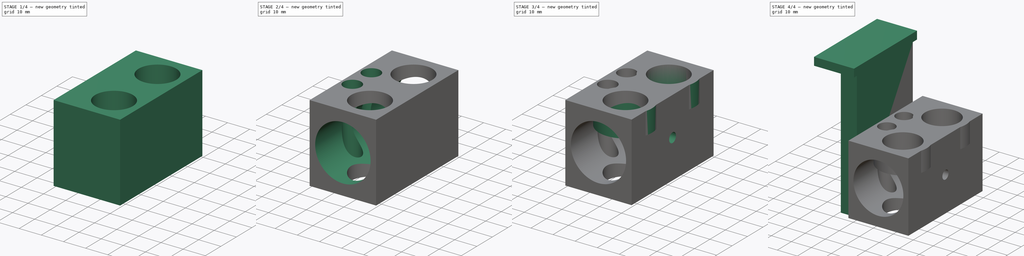
[diagram: build sequence overview — one tinted view per stage of 4, left to right]
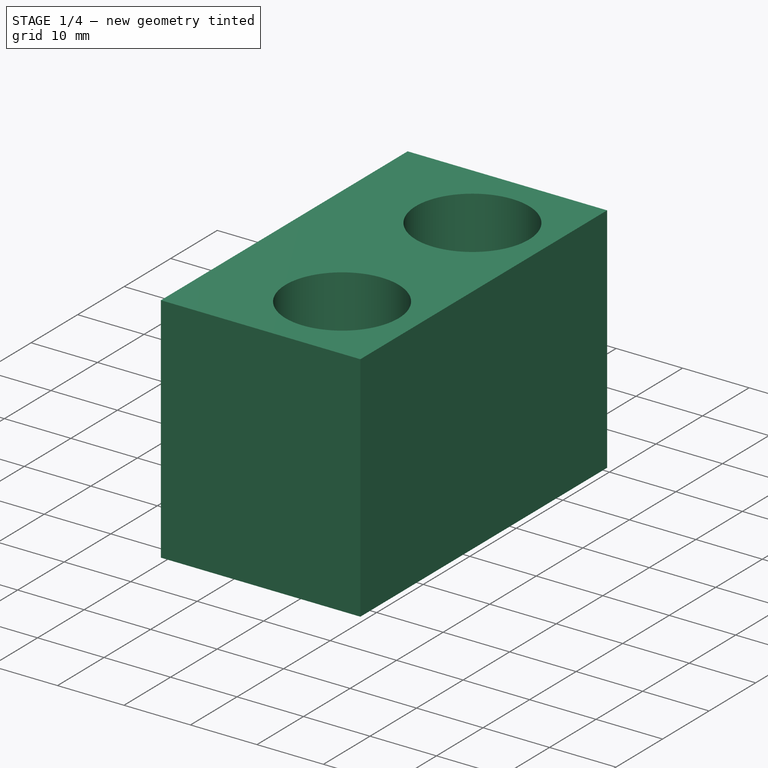
[diagram: stage 1 of 4 — iso view after this stage's code; geometry added in this stage tinted green]
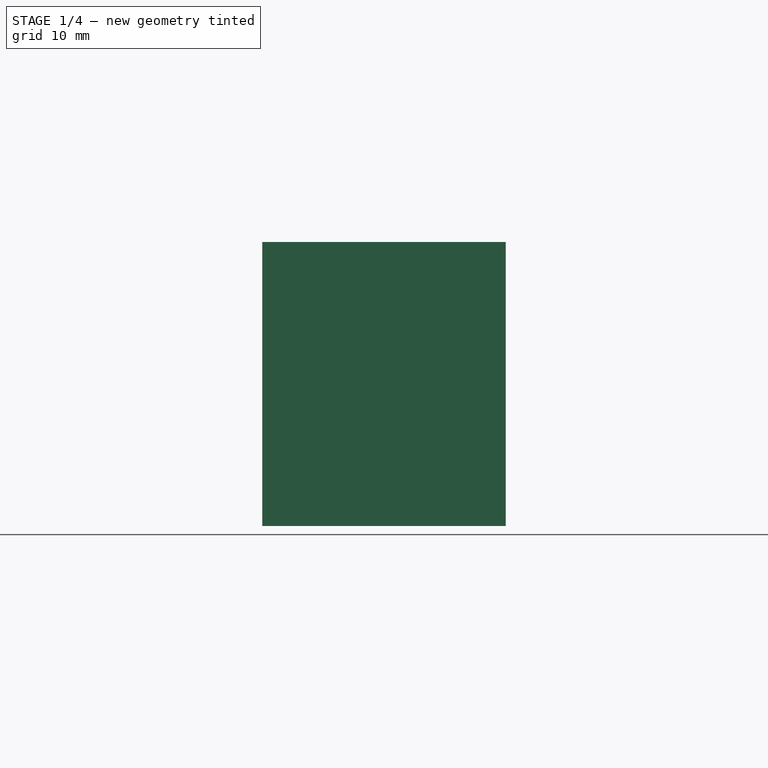
[diagram: stage 1 of 4 — front view after this stage's code; geometry added in this stage tinted green]
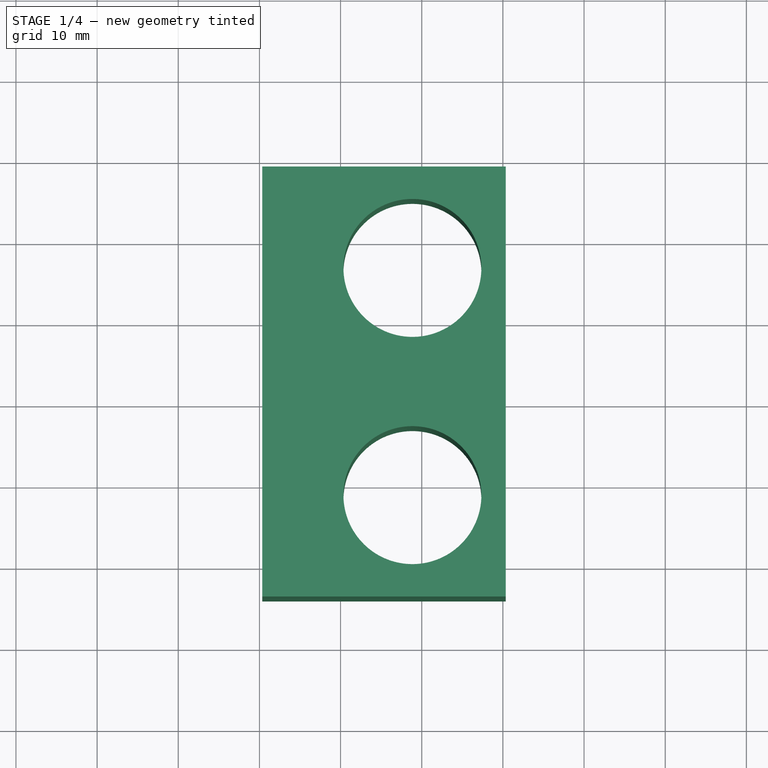
[diagram: stage 1 of 4 — top view after this stage's code; geometry added in this stage tinted green]
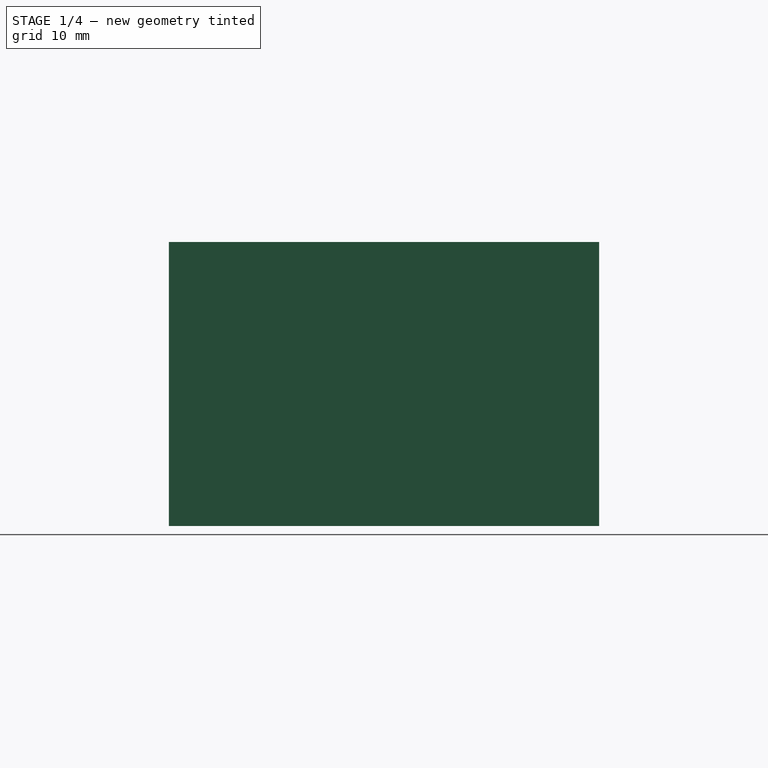
[diagram: stage 1 of 4 — right view after this stage's code; geometry added in this stage tinted green]
FCSTD DOCUMENT  (FreeCAD 0.15R4102 (Git))
Label: doble-extrusor
License: CC-BY 3.0
LicenseURL: http://creativecommons.org/licenses/by/3.0/
objects: Part::Feature×25, Sketcher::SketchObject×6, PartDesign::Pocket×4, Part::Box×3, App::DocumentObjectGroup×2, PartDesign::Pad×2
note: 46 computed .brp shape members not serialized (recipe doc carries the construction recipe); baked Part::Feature solids carry a one-line shape summary decoded from their .brp

FEATURE [Part::Box] Box001  label="Cube001"
  Height = 35
  Length = 30
  Placement = pos=(-189.65,336,94) rot=(0,0,1;0rad)
  Width = 53
FEATURE [Sketcher::SketchObject] Sketch
  ExternalGeometry = -> [Box001]
  Placement = pos=(-189.65,336,129) rot=(0,0,1;0rad)
  Support = -> Box001 [Face6]
  sketch-geometry (6):
    g0: Circle CenterX=18.5 CenterY=40.5 CenterZ=0 NormalX=0 NormalY=0 NormalZ=1 Radius=8.5
    g1: Circle CenterX=18.5 CenterY=12.5 CenterZ=0 NormalX=0 NormalY=0 NormalZ=1 Radius=8.5
    g2: LineSegment [constr] StartX=18.5 StartY=53 StartZ=0 EndX=18.5 EndY=40.5 EndZ=0
    g3: LineSegment [constr] StartX=18.5 StartY=12.5 StartZ=0 EndX=18.5 EndY=0 EndZ=0
    g4: LineSegment [constr] StartX=18.5 StartY=40.5 StartZ=0 EndX=18.5 EndY=12.5 EndZ=0
    g5: LineSegment [constr] StartX=27 StartY=53 StartZ=0 EndX=27 EndY=0 EndZ=0
  constraints (17):
    c: PointOnObject(g2,g-3)
    c: PointOnObject(g3,g-4)
    c: Vertical(g2)
    c: Equal(g1,g0)
    c: Radius(g0) = 8.5
    c: Coincident(g2,g0)
    c: Coincident(g3,g1)
    c: Tangent(g2,g3)
    c: Coincident(g4,g0)
    c: Coincident(g4,g1)
    c: Equal(g2,g3)
    c: PointOnObject(g5,g-3)
    c: PointOnObject(g5,g-4)
    c: Vertical(g5)
    c: Tangent(g0,g5)
    c: Distance(g4) = 28
    c: Distance(g5,g-5) = 3
FEATURE [Part::Feature] Pocket001  label="Ventilador30mm"
  Placement = pos=(-189.65,389,96) rot=(0,0,1;0rad)
  shape: bbox 30 x 10 x 30 mm, 15 faces (baked)
FEATURE [PartDesign::Pocket] Pocket002
  Length = 35
  Placement = pos=(-189.65,336,94) rot=(0,0,1;0rad)
  Sketch = -> Sketch
  Type = 0
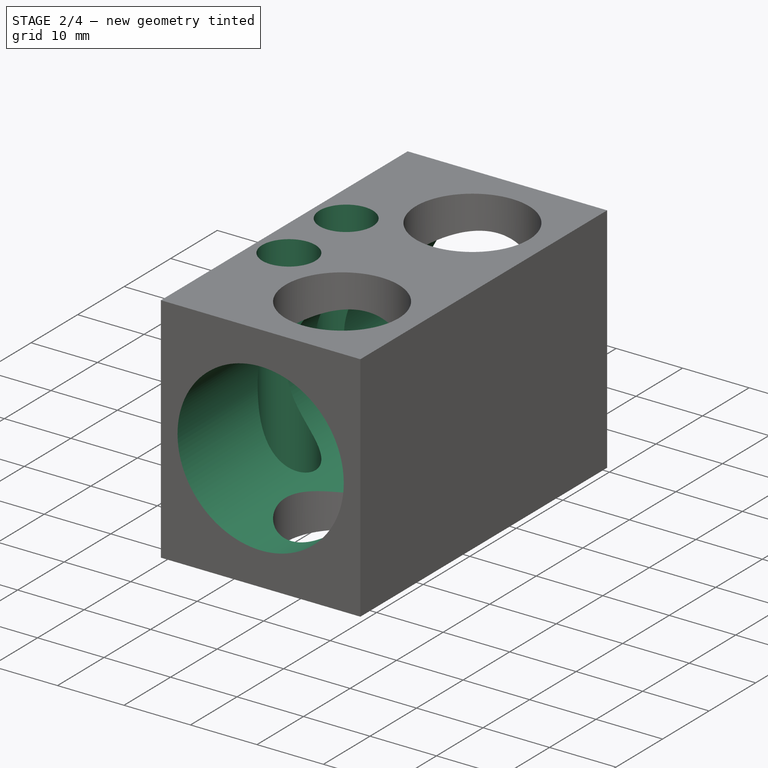
[diagram: stage 2 of 4 — iso view after this stage's code; geometry added in this stage tinted green]
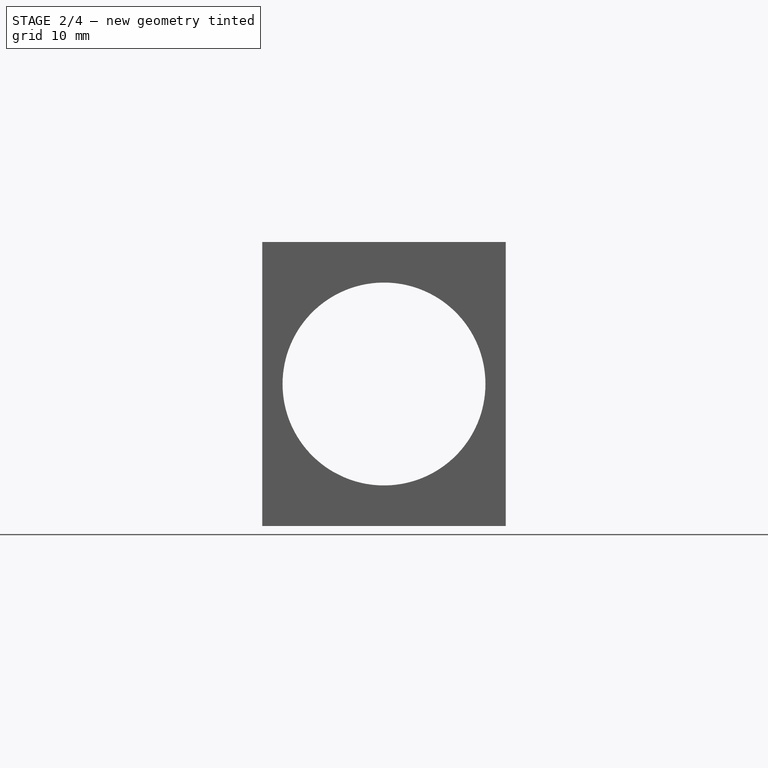
[diagram: stage 2 of 4 — front view after this stage's code; geometry added in this stage tinted green]
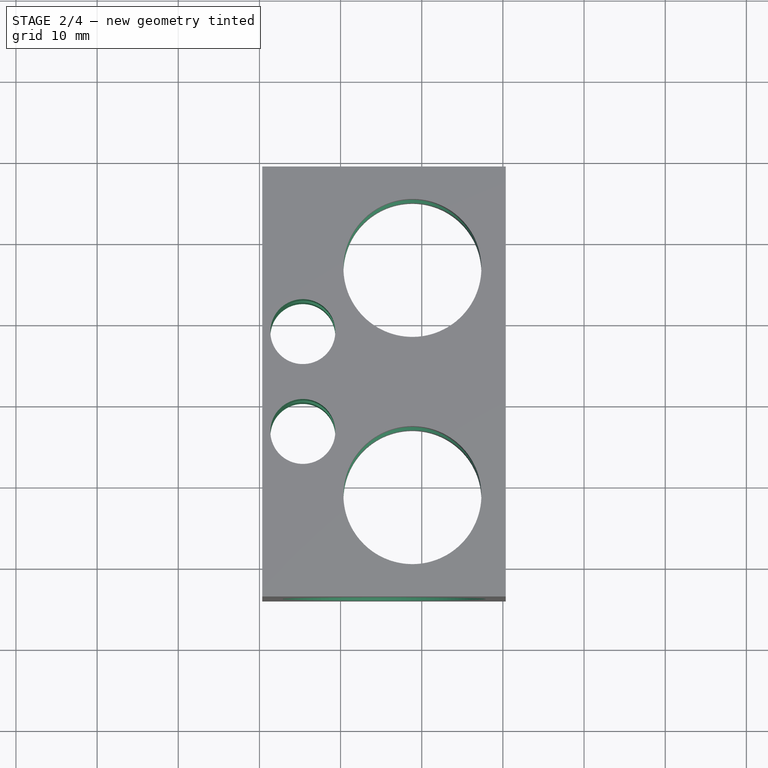
[diagram: stage 2 of 4 — top view after this stage's code; geometry added in this stage tinted green]
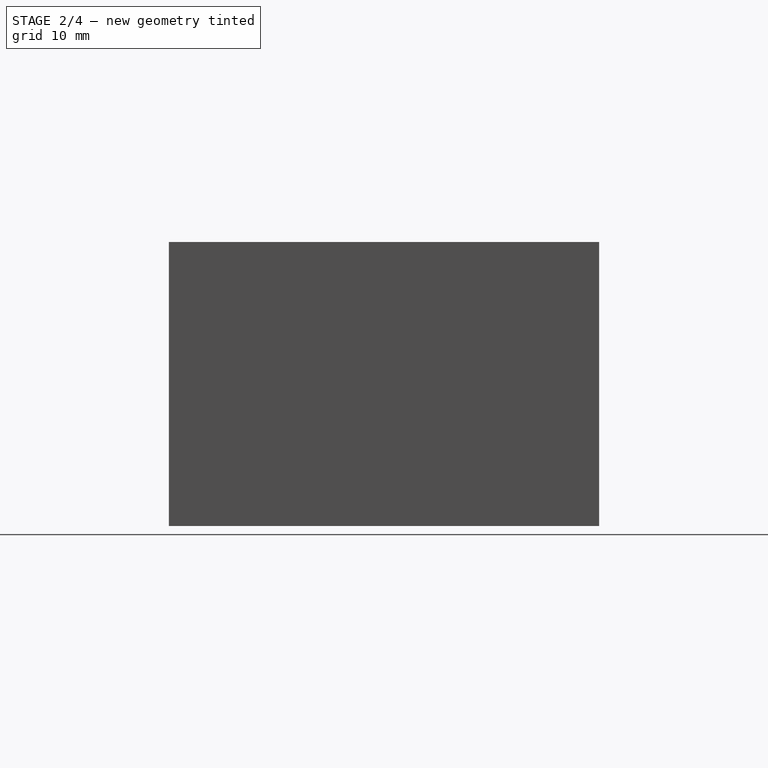
[diagram: stage 2 of 4 — right view after this stage's code; geometry added in this stage tinted green]
FEATURE [Sketcher::SketchObject] Sketch001
  ExternalGeometry = -> [Pocket002]
  Placement = pos=(-189.65,389,94) rot=(0,0.707107,0.707107;3.14159rad)
  Support = -> Pocket002 [Face4]
  sketch-geometry (3):
    g0: LineSegment [constr] StartX=0 StartY=35 StartZ=0 EndX=-30 EndY=0 EndZ=0
    g1: LineSegment [constr] StartX=-30 StartY=35 StartZ=0 EndX=0 EndY=0 EndZ=0
    g2: Circle CenterX=-15 CenterY=17.5 CenterZ=0 NormalX=0 NormalY=0 NormalZ=1 Radius=12.5
  constraints (7):
    c: Coincident(g0,g-3)
    c: Coincident(g0,g-4)
    c: Coincident(g1,g-3)
    c: Coincident(g1,g-1)
    c: PointOnObject(g2,g0)
    c: PointOnObject(g2,g1)
    c: Radius(g2) = 12.5
FEATURE [PartDesign::Pocket] Pocket003
  Length = 53
  Placement = pos=(-189.65,336,94) rot=(0,0,1;0rad)
  Sketch = -> Sketch001
  Type = 0
FEATURE [Sketcher::SketchObject] Sketch002
  ExternalGeometry = -> [Pocket003]
  Placement = pos=(-189.65,336,129) rot=(0,0,1;0rad)
  Support = -> Pocket003 [Face3]
  sketch-geometry (5):
    g0: LineSegment [constr] StartX=5 StartY=20.3492 StartZ=0 EndX=5 EndY=0 EndZ=0
    g1: Circle CenterX=5 CenterY=20.3492 CenterZ=0 NormalX=0 NormalY=0 NormalZ=1 Radius=4
    g2: LineSegment [constr] StartX=5 StartY=20.3492 StartZ=0 EndX=5 EndY=32.6508 EndZ=0
    g3: LineSegment [constr] StartX=5 StartY=32.6508 StartZ=0 EndX=5 EndY=53 EndZ=0
    g4: Circle CenterX=5 CenterY=32.6508 CenterZ=0 NormalX=0 NormalY=0 NormalZ=1 Radius=4
  constraints (13):
    c: PointOnObject(g0,g-5)
    c: Vertical(g0)
    c: Radius(g1) = 4
    c: Distance(g-1,g0) = 5
    c: Vertical(g2)
    c: Coincident(g2,g3)
    c: PointOnObject(g3,g-4)
    c: Vertical(g3)
    c: Coincident(g0,g1)
    c: Coincident(g0,g2)
    c: Equal(g0,g3)
    c: Coincident(g4,g2)
    c: Equal(g4,g1)
FEATURE [PartDesign::Pocket] Pocket004
  Length = 35
  Placement = pos=(-189.65,336,94) rot=(0,0,1;0rad)
  Sketch = -> Sketch002
  Type = 0
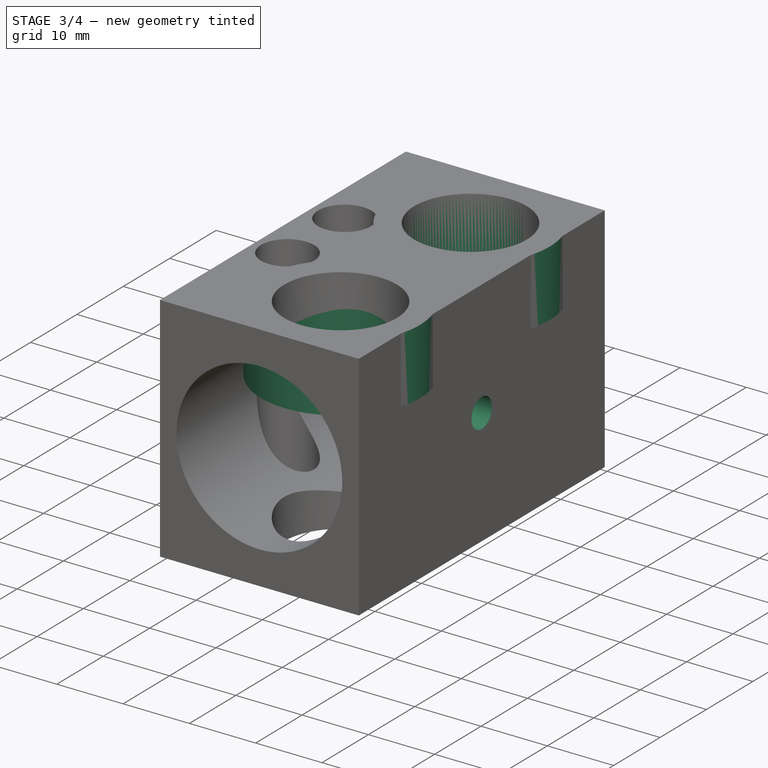
[diagram: stage 3 of 4 — iso view after this stage's code; geometry added in this stage tinted green]
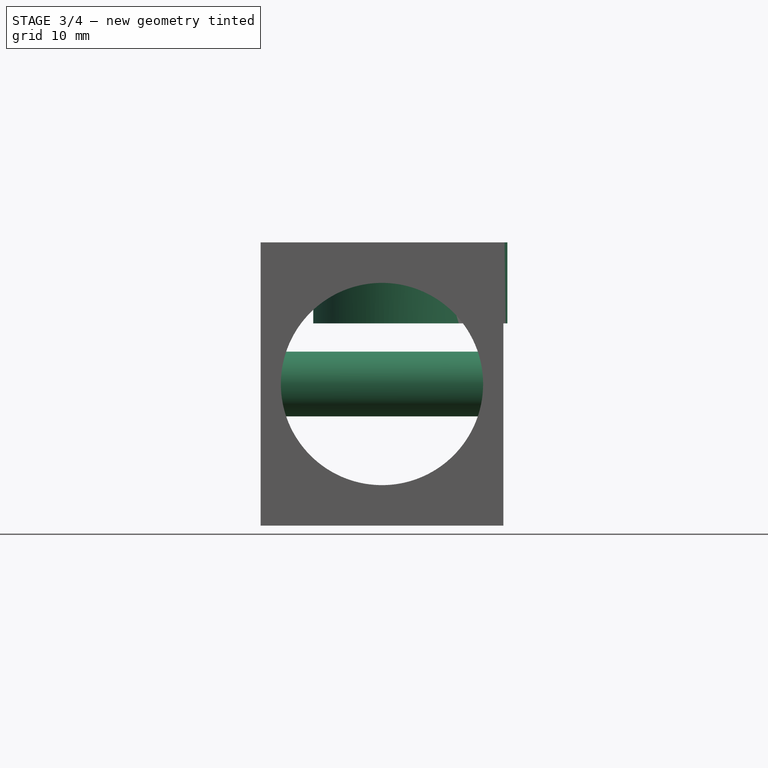
[diagram: stage 3 of 4 — front view after this stage's code; geometry added in this stage tinted green]
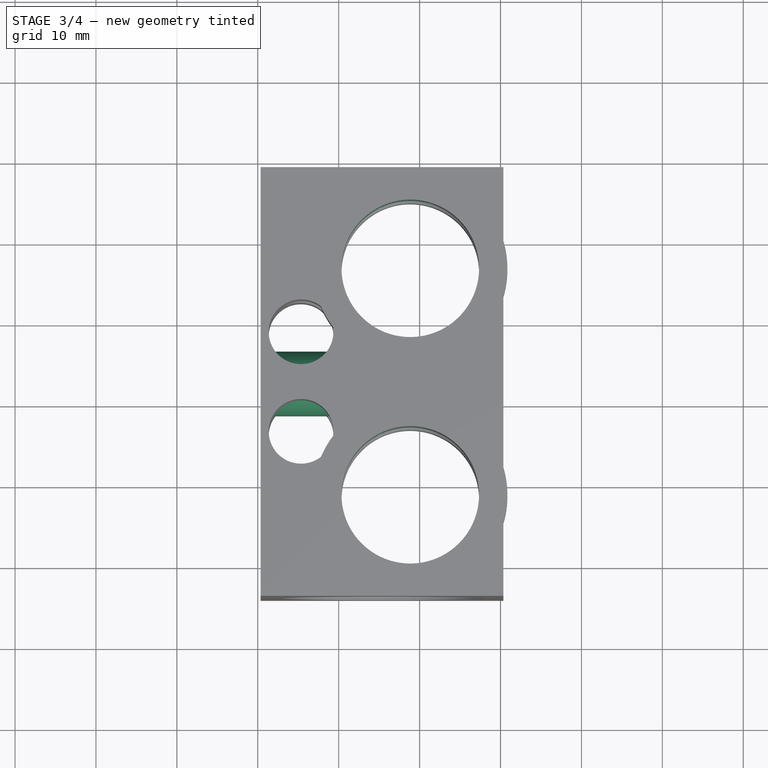
[diagram: stage 3 of 4 — top view after this stage's code; geometry added in this stage tinted green]
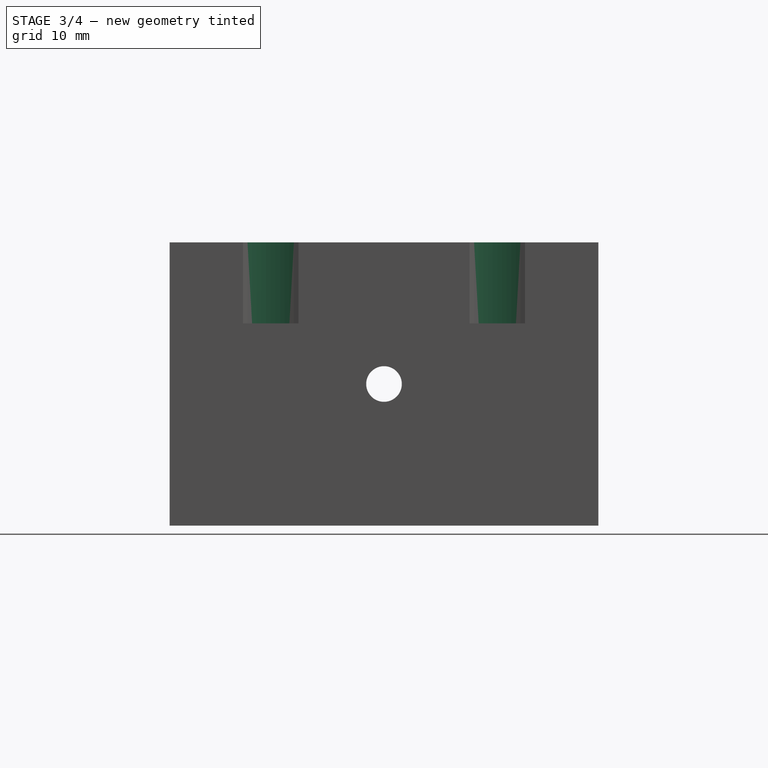
[diagram: stage 3 of 4 — right view after this stage's code; geometry added in this stage tinted green]
FEATURE [Sketcher::SketchObject] Sketch003
  Placement = pos=(-189.65,336,129) rot=(0,0,1;0rad)
  Support = -> Pocket004 [Face3]
  sketch-geometry (4):
    g0: Circle CenterX=18.5 CenterY=40.5 CenterZ=0 NormalX=0 NormalY=0 NormalZ=1 Radius=8.5
    g1: Circle CenterX=18.4973 CenterY=12.5057 CenterZ=0 NormalX=0 NormalY=0 NormalZ=1 Radius=8.5
    g2: Circle CenterX=18.5 CenterY=40.5 CenterZ=0 NormalX=0 NormalY=0 NormalZ=1 Radius=12
    g3: Circle CenterX=18.5 CenterY=12.5 CenterZ=0 NormalX=0 NormalY=0 NormalZ=1 Radius=12
  constraints (3):
    c: Coincident(g2,g0)
    c: Radius(g3) = 12
    c: Equal(g3,g2)
FEATURE [PartDesign::Pad] Pad001
  Length = 10
  Length2 = 100
  Placement = pos=(-189.65,336,94) rot=(0,0,1;0rad)
  Reversed = true
  Sketch = -> Sketch003
  Type = 0
FEATURE [Sketcher::SketchObject] Sketch004
  ExternalGeometry = -> [Pad001]
  Placement = pos=(-159.65,336,94) rot=(0.57735,0.57735,0.57735;2.0944rad)
  Support = -> Pad001 [Face5]
  sketch-geometry (5):
    g0: LineSegment [constr] StartX=0 StartY=17.5 StartZ=0 EndX=26.5 EndY=17.5 EndZ=0
    g1: LineSegment [constr] StartX=26.5 StartY=17.5 StartZ=0 EndX=53 EndY=17.5 EndZ=0
    g2: LineSegment [constr] StartX=26.5 StartY=17.5 StartZ=0 EndX=26.5 EndY=0 EndZ=0
    g3: Circle CenterX=26.5 CenterY=17.5 CenterZ=0 NormalX=0 NormalY=0 NormalZ=1 Radius=2.2
    g4: LineSegment [constr] StartX=26.5 StartY=17.5 StartZ=0 EndX=26.5 EndY=35 EndZ=0
  constraints (12):
    c: Coincident(g3,g1)
    c: Horizontal(g1)
    c: Horizontal(g0)
    c: PointOnObject(g1,g2)
    c: Vertical(g2)
    c: Equal(g0,g1)
    c: Coincident(g2,g0)
    c: Coincident(g4,g0)
    c: Vertical(g4)
    c: Equal(g4,g2)
    c: Coincident(g1,g0)
    c: Radius(g3) = 2.2
FEATURE [PartDesign::Pocket] Pocket005
  Length = 30
  Placement = pos=(-189.65,336,94) rot=(0,0,1;0rad)
  Sketch = -> Sketch004
  Type = 0
FEATURE [Sketcher::SketchObject] Sketch005
  Placement = pos=(-159.65,336,94) rot=(0.57735,0.57735,0.57735;2.0944rad)
  Support = -> Pocket005 [Face7]
  sketch-geometry (2):
    g0: Circle CenterX=26.5 CenterY=17.5 CenterZ=0 NormalX=0 NormalY=0 NormalZ=1 Radius=4
    g1: Circle CenterX=26.5 CenterY=17.5 CenterZ=0 NormalX=0 NormalY=0 NormalZ=1 Radius=2.2
  constraints (2):
    c: Coincident(g0,g1)
    c: Radius(g0) = 4
FEATURE [PartDesign::Pad] Pad002
  Length = 30
  Length2 = 100
  Placement = pos=(-189.65,336,94) rot=(0,0,1;0rad)
  Reversed = true
  Sketch = -> Sketch005
  Type = 0
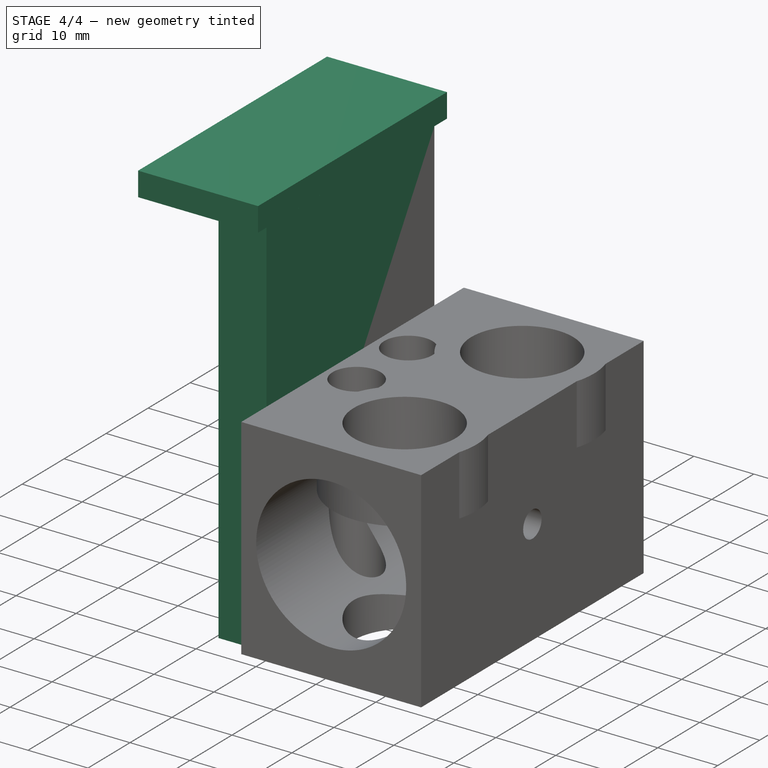
[diagram: stage 4 of 4 — iso view after this stage's code; geometry added in this stage tinted green]
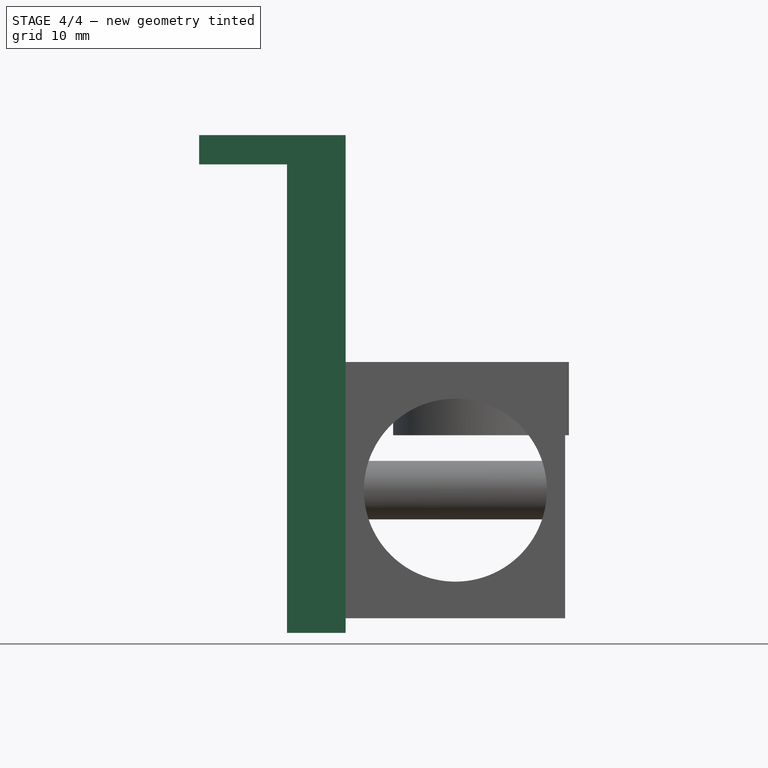
[diagram: stage 4 of 4 — front view after this stage's code; geometry added in this stage tinted green]
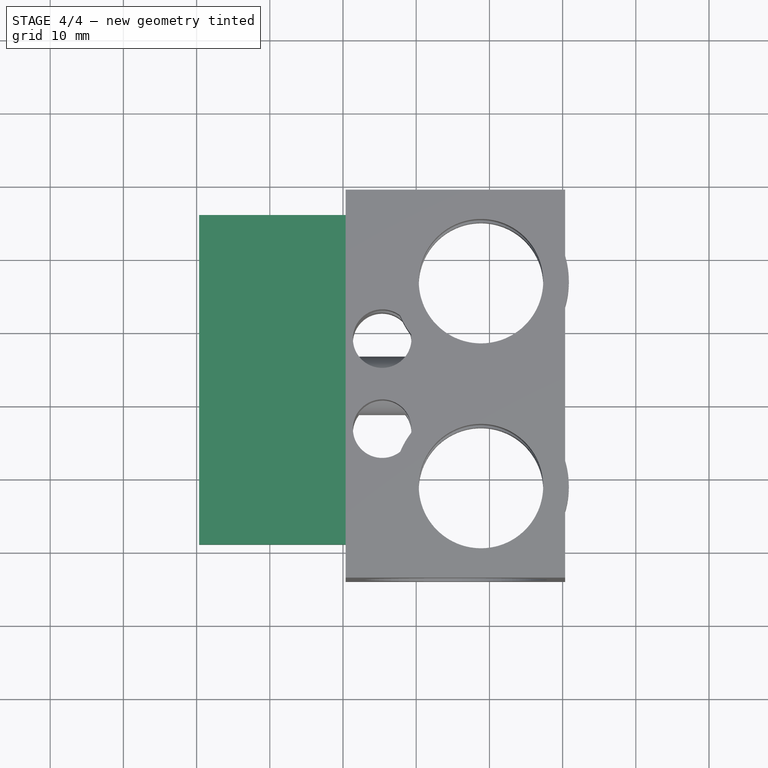
[diagram: stage 4 of 4 — top view after this stage's code; geometry added in this stage tinted green]
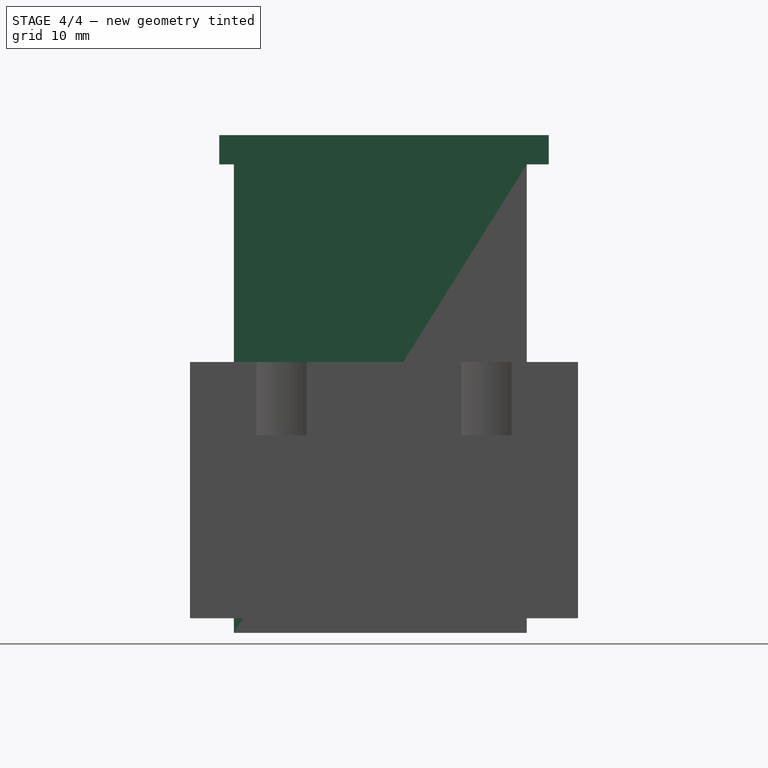
[diagram: stage 4 of 4 — right view after this stage's code; geometry added in this stage tinted green]
FEATURE [Part::Feature] Part__Feature  label="correaX"
  Placement = pos=(-3097.55,3700.46,-130) rot=(0,0,1;0rad)
  shape: bbox 5.8 x 387.9 x 22.53 mm, 52 faces, 0 solids (baked)
FEATURE [Part::Feature] Part__Feature001  label="varilla003"
  Placement = pos=(-3097.55,3700.46,-130) rot=(0,0,1;0rad)
  shape: bbox 8 x 360.1 x 8 mm, 8 faces (baked)
FEATURE [Part::Feature] Part__Feature002  label="varilla002"
  Placement = pos=(-3097.55,3700.46,-130) rot=(0,0,1;0rad)
  shape: bbox 8 x 360.1 x 8 mm, 8 faces (baked)
FEATURE [Part::Feature] Part__Feature003  label="Document252"
  Placement = pos=(-3097.55,3700.46,-130) rot=(0,0,1;0rad)
  shape: bbox 32 x 39.5 x 60 mm, 60 faces (baked)
FEATURE [Part::Feature] Part__Feature004  label="x_motor"
  Placement = pos=(-3097.55,3700.46,-130) rot=(0,0,1;0rad)
  shape: bbox 32 x 82.5 x 60 mm, 96 faces, 0 solids (baked)
FEATURE [Part::Feature] Part__Feature006  label="Document215"
  Placement = pos=(-3097.55,3700.46,0) rot=(0,0,1;0rad)
  shape: bbox 3 x 390 x 370 mm, 688 faces (baked)
FEATURE [Part::Feature] Part__Feature007  label="camaCaliente"
  Placement = pos=(-3097.55,3700.46,0) rot=(0,0,1;0rad)
  shape: bbox 214 x 214 x 3 mm, 14 faces (baked)
FEATURE [Part::Feature] Part__Feature008  label="Document180"
  Placement = pos=(-3097.55,3700.46,0) rot=(0,0,1;0rad)
  shape: bbox 230.9 x 223 x 3 mm, 242 faces (baked)
FEATURE [Part::Feature] Part__Feature009  label="Endstop"
  Placement = pos=(-3097.55,3700.46,-130) rot=(0,0,1;0rad)
  shape: bbox 6 x 19.83 x 19.7 mm, 47 faces (baked)
FEATURE [Part::Feature] Part__Feature010  label="Nema001"
  Placement = pos=(-3097.55,3700.46,0) rot=(0,0,1;0rad)
  shape: bbox 71.05 x 42 x 42 mm, 43 faces (baked)
FEATURE [Part::Feature] Part__Feature011  label="JheadMK5"
  Placement = pos=(-3097.55,3611.46,-138) rot=(0,0,1;0rad)
  shape: bbox 24.81 x 19.62 x 55.95 mm, 36 faces (baked)
FEATURE [Part::Feature] Part__Feature012  label="xcarriage"
  Placement = pos=(-3097.55,3840.46,-130) rot=(0,0,1;0rad)
  shape: bbox 23 x 60 x 71 mm, 162 faces (baked)
FEATURE [Part::Feature] Part__Feature014  label="Document171"
  Placement = pos=(-3097.55,3840.46,-130) rot=(0,0,1;0rad)
  shape: bbox 15 x 45 x 15 mm, 18 faces (baked)
FEATURE [Part::Feature] Part__Feature015  label="LM8UUL"
  Placement = pos=(-3097.55,3700.46,0) rot=(0,0,1;0rad)
  shape: bbox 15 x 45 x 15 mm, 18 faces (baked)
FEATURE [Part::Feature] Part__Feature016  label="acoplador001"
  Placement = pos=(-3097.55,3700.46,0) rot=(0,0,1;0rad)
  shape: bbox 19.06 x 19.08 x 25 mm, 33 faces (baked)
FEATURE [Part::Feature] Part__Feature017  label="acoplador"
  Placement = pos=(-3097.55,3700.46,0) rot=(0,0,1;0rad)
  shape: bbox 19.06 x 19.08 x 25 mm, 33 faces (baked)
FEATURE [Part::Feature] Part__Feature022  label="JheadMK006"
  Placement = pos=(-3095.15,3801.8,-138) rot=(0,0,1;0rad)
  shape: bbox 24.81 x 19.62 x 55.95 mm, 36 faces (baked)
FEATURE [Part::Feature] Part__Feature026  label="Nema002"
  Placement = pos=(-3097.55,3700.46,0) rot=(0,0,1;0rad)
  shape: bbox 71.05 x 42 x 42 mm, 43 faces (baked)
FEATURE [Part::Feature] Part__Feature027  label="Document254"
  Placement = pos=(-3097.55,3620.46,-130) rot=(0,0,1;0rad)
  shape: bbox 15 x 45 x 15 mm, 18 faces (baked)
FEATURE [Part::Feature] Part__Feature028  label="LM8UUL001"
  Placement = pos=(-3097.55,3840.46,-130) rot=(0,0,1;0rad)
  shape: bbox 15 x 45 x 15 mm, 18 faces (baked)
FEATURE [Part::Feature] Part__Feature029  label="Espejo"
  Placement = pos=(-3097.55,3700.46,4) rot=(0,0,1;0rad)
  shape: bbox 214 x 214 x 3 mm, 14 faces (baked)
FEATURE [App::DocumentObjectGroup] Group  label="Cosmetico"
  Group = -> [Part__Feature006,Part__Feature007,Part__Feature008,Part__Feature009,Part__Feature010,Part__Feature015,Part__Feature016,Part__Feature017,Part__Feature022,Part__Feature026,Part__Feature029]
FEATURE [App::DocumentObjectGroup] Group001  label="Ejex"
  Group = -> [Part__Feature004,Part__Feature012,Part__Feature,Part__Feature001,Part__Feature002,Part__Feature003,Part__Feature011,Part__Feature027,Part__Feature014,Part__Feature028]
FEATURE [Part::Feature] Pad  label="NEMA018"
  Placement = pos=(-182,363,160) rot=(0,0,1;1.5708rad)
  shape: bbox 65 x 42.3 x 42.3 mm, 22 faces (baked)
FEATURE [Part::Feature] Part__Feature030  label="JheadMK007"
  Placement = pos=(-3095.15,3829.8,-138) rot=(0,0,1;0rad)
  shape: bbox 24.81 x 19.62 x 55.95 mm, 36 faces (baked)
FEATURE [Part::Feature] Pocket  label="ventilador40mm"
  Placement = pos=(-160,163,92) rot=(0,0,-1;1.5708rad)
  shape: bbox 10 x 41 x 41 mm, 15 faces (baked)
FEATURE [Part::Box] Box  label="Cube"
  Height = 64
  Length = 8
  Placement = pos=(-197.65,342,92) rot=(0,0,1;0rad)
  Width = 40
FEATURE [Part::Box] Box002  label="Cube002"
  Height = 4
  Length = 20
  Placement = pos=(-209.65,340,156) rot=(0,0,1;0rad)
  Width = 45
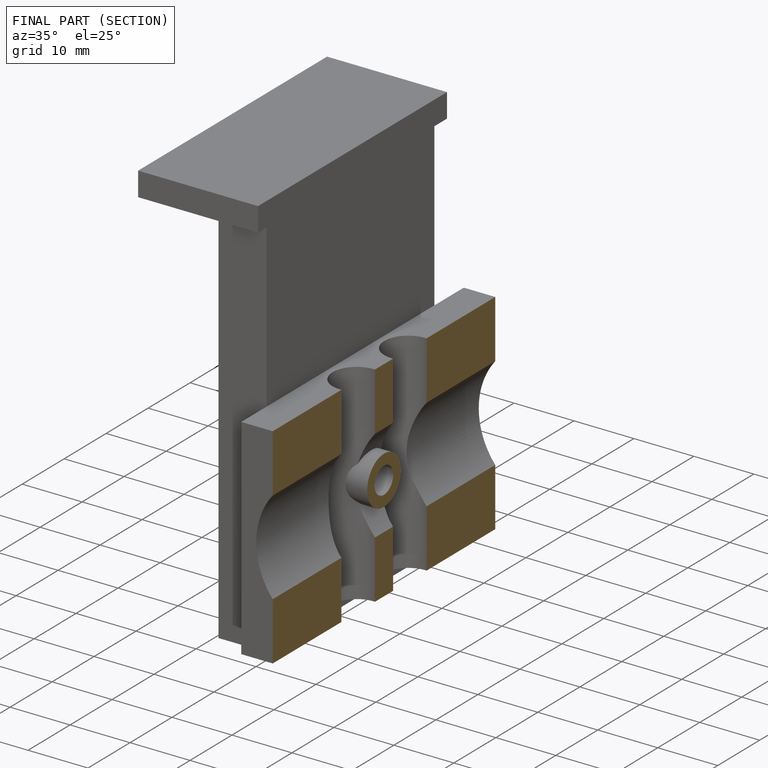
[diagram: finished part — half-section view (interior)]
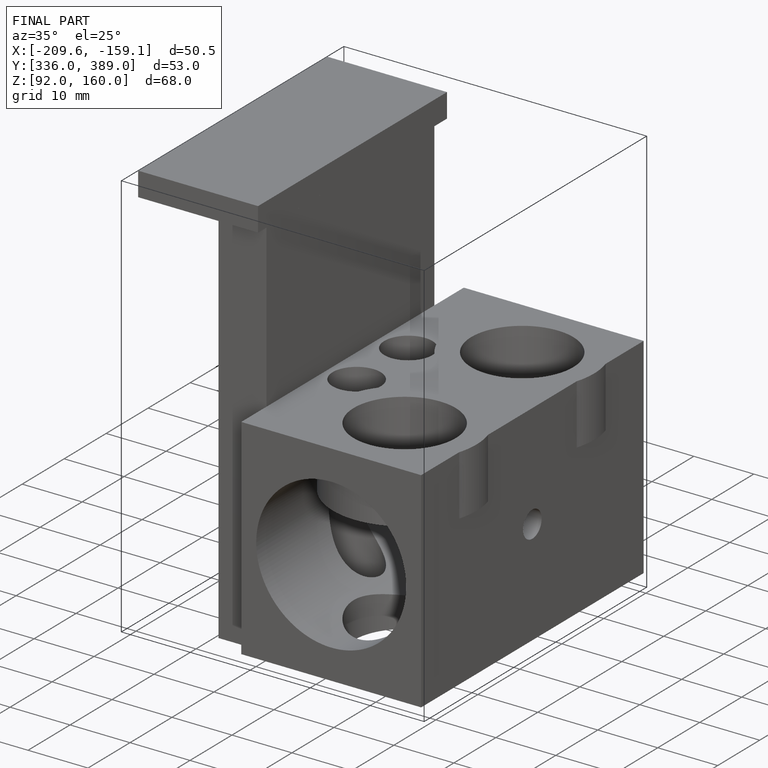
[diagram: finished part — iso view with bounding-box wireframe]
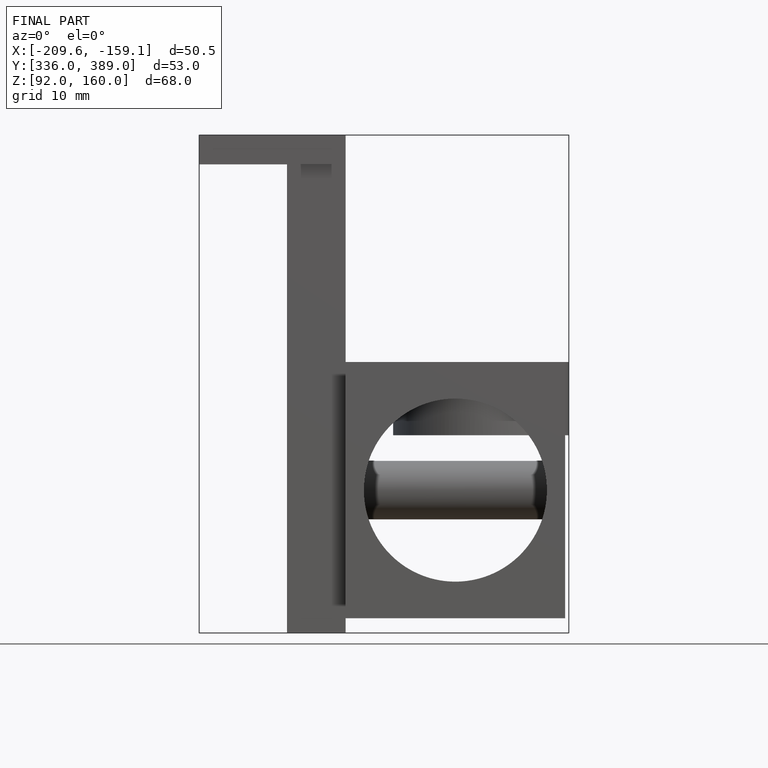
[diagram: finished part — front view with bounding-box wireframe]
